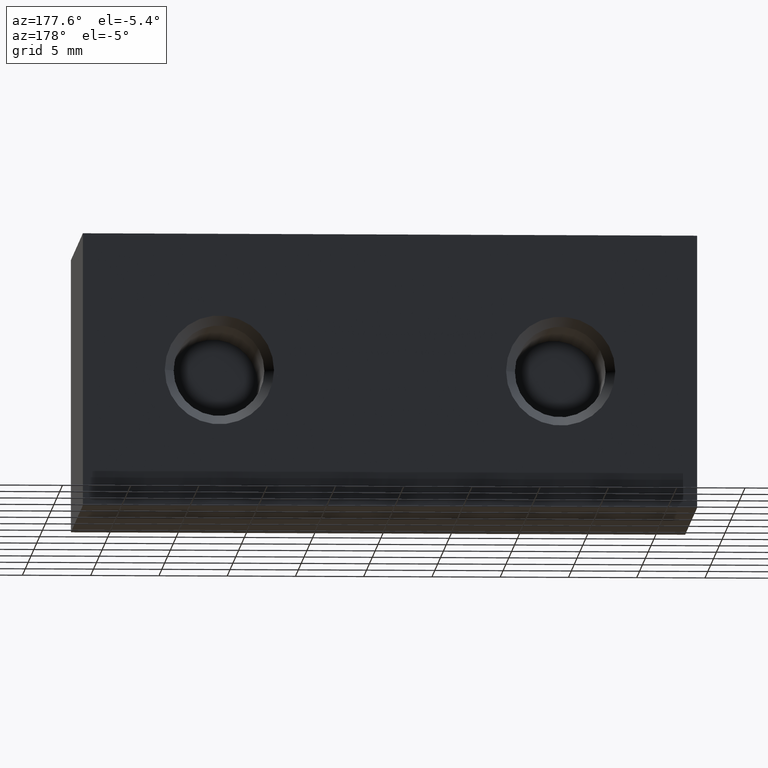
[diagram: clean part render]
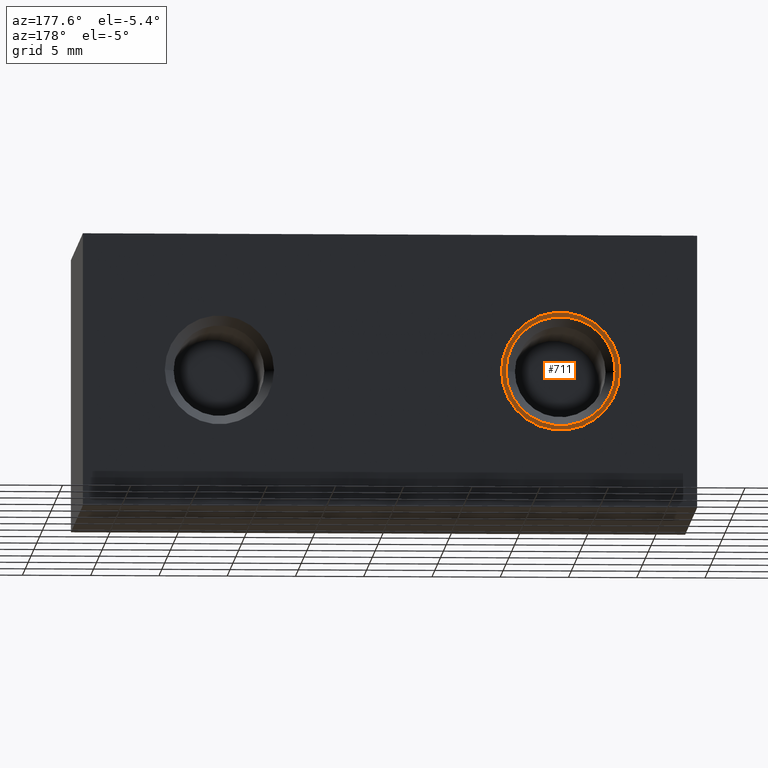
[diagram: same view with one face highlighted and labeled with its STEP entity id]
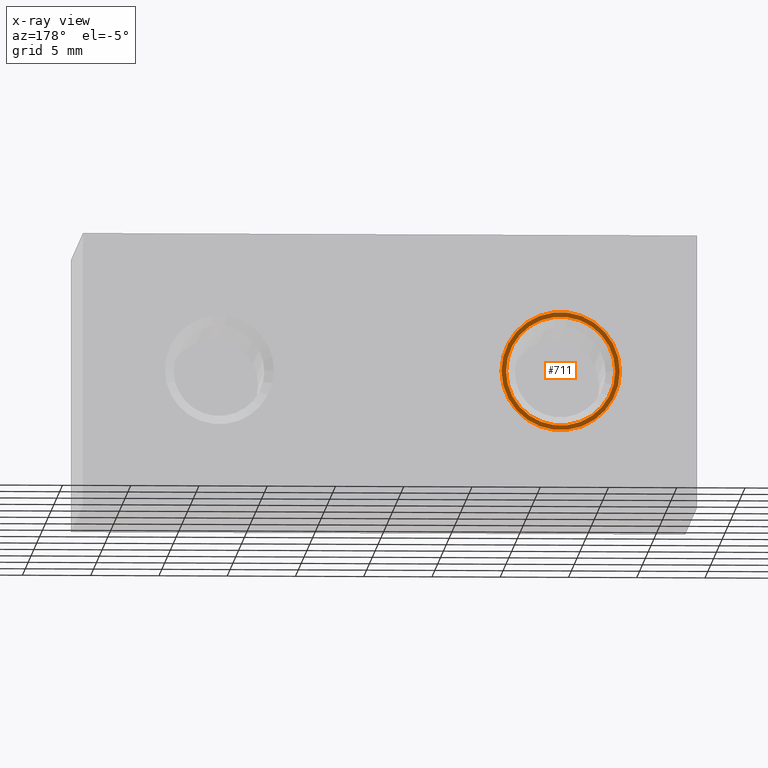
[diagram: x-ray of the same camera — body ghosted, the highlighted face saturated]
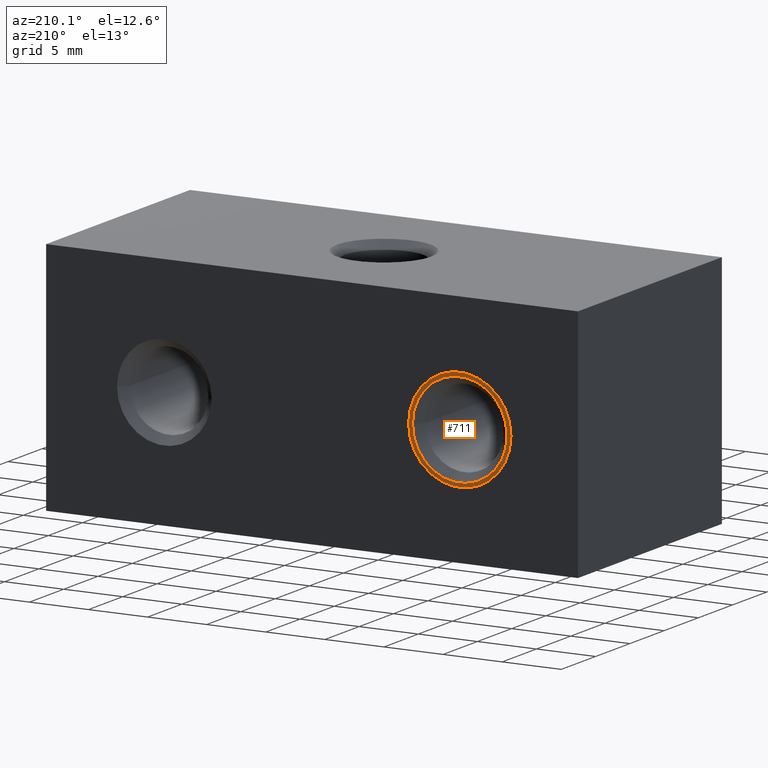
[diagram: same view with one face highlighted and labeled with its STEP entity id]
A machine part, auxiliary view. The second image highlights one B-rep face of the part: STEP entity #711.
The next image is the same camera in x-ray: the body ghosted, the highlighted face saturated — about 0% of this face is hidden behind the body in this view.
A second angle (auxiliary view) of the same face is appended — the face is thin or edge-on in the first view.
In plain terms, the highlighted planar face has unit normal (0, 1, 0).
Its self-contained STEP definition (entity closure, byte-faithful):
#54=FACE_BOUND('',#158,.T.);
#80=PLANE('',#850);
#117=FACE_OUTER_BOUND('',#157,.T.);
#157=EDGE_LOOP('',(#661,#662));
#158=EDGE_LOOP('',(#663,#664));
#295=CIRCLE('',#845,4.);
#296=CIRCLE('',#846,4.);
#297=CIRCLE('',#848,4.334);
#298=CIRCLE('',#849,4.334);
#365=VERTEX_POINT('',#1291);
#366=VERTEX_POINT('',#1293);
#367=VERTEX_POINT('',#1297);
#368=VERTEX_POINT('',#1298);
#464=EDGE_CURVE('',#366,#365,#295,.T.);
#465=EDGE_CURVE('',#365,#366,#296,.T.);
#466=EDGE_CURVE('',#367,#368,#297,.T.);
#467=EDGE_CURVE('',#368,#367,#298,.T.);
#661=ORIENTED_EDGE('',*,*,#466,.T.);
#662=ORIENTED_EDGE('',*,*,#467,.T.);
#663=ORIENTED_EDGE('',*,*,#464,.T.);
#664=ORIENTED_EDGE('',*,*,#465,.T.);
#711=ADVANCED_FACE('',(#117,#54),#80,.T.);
#845=AXIS2_PLACEMENT_3D('',#1294,#1047,#1048);
#846=AXIS2_PLACEMENT_3D('',#1295,#1049,#1050);
#848=AXIS2_PLACEMENT_3D('',#1299,#1053,#1054);
#849=AXIS2_PLACEMENT_3D('',#1300,#1055,#1056);
#850=AXIS2_PLACEMENT_3D('',#1302,#1058,#1059);
#1047=DIRECTION('center_axis',(-1.,0.,0.));
#1048=DIRECTION('ref_axis',(0.,1.,0.));
#1049=DIRECTION('center_axis',(-1.,0.,0.));
#1050=DIRECTION('ref_axis',(0.,1.,0.));
#1053=DIRECTION('center_axis',(1.,0.,0.));
#1054=DIRECTION('ref_axis',(0.,0.,-1.));
#1055=DIRECTION('center_axis',(1.,0.,0.));
#1056=DIRECTION('ref_axis',(0.,0.,-1.));
#1058=DIRECTION('center_axis',(1.,0.,0.));
#1059=DIRECTION('ref_axis',(0.,0.,-1.));
#1291=CARTESIAN_POINT('',(12.4,-4.,-4.89858719658941E-16));
#1293=CARTESIAN_POINT('',(12.4,4.,0.));
#1294=CARTESIAN_POINT('Origin',(12.4,0.,0.));
#1295=CARTESIAN_POINT('Origin',(12.4,0.,0.));
#1297=CARTESIAN_POINT('',(12.4,4.334,0.));
#1298=CARTESIAN_POINT('',(12.4,-4.334,-5.30761922750463E-16));
#1299=CARTESIAN_POINT('Origin',(12.4,0.,0.));
#1300=CARTESIAN_POINT('Origin',(12.4,0.,0.));
#1302=CARTESIAN_POINT('Origin',(12.4,0.,0.));